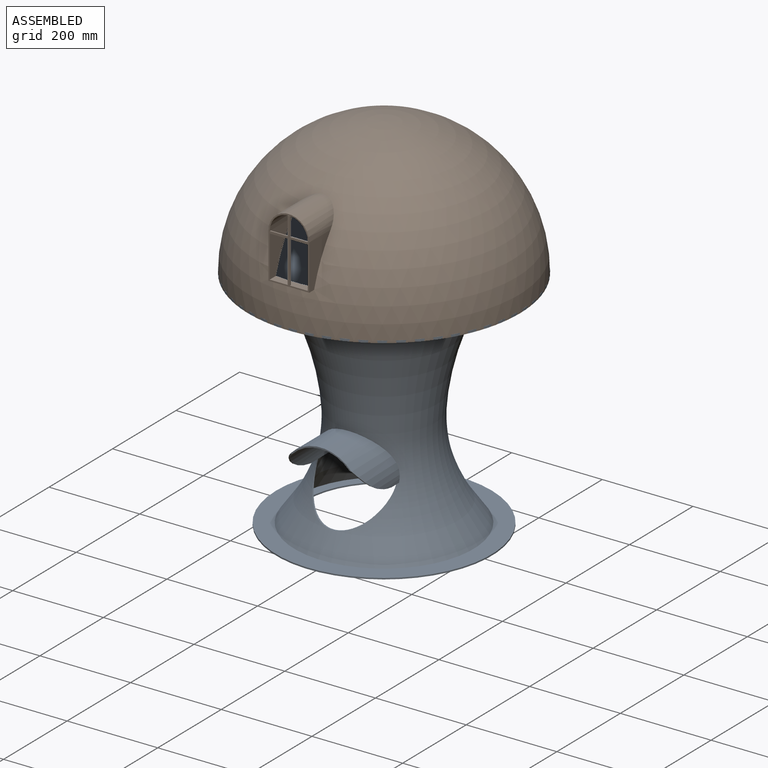
[diagram: assembled view]
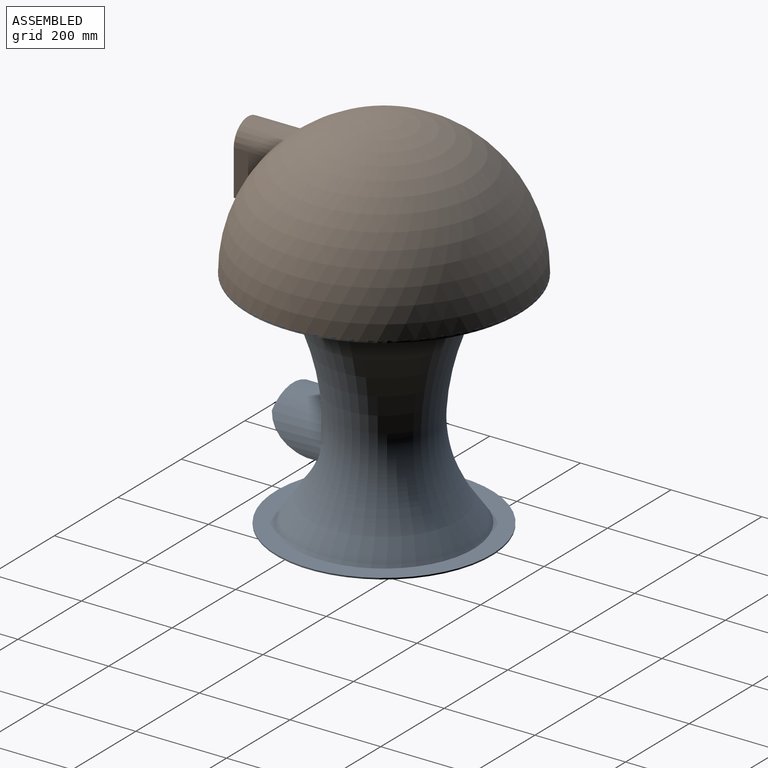
[diagram: assembled view, second angle]
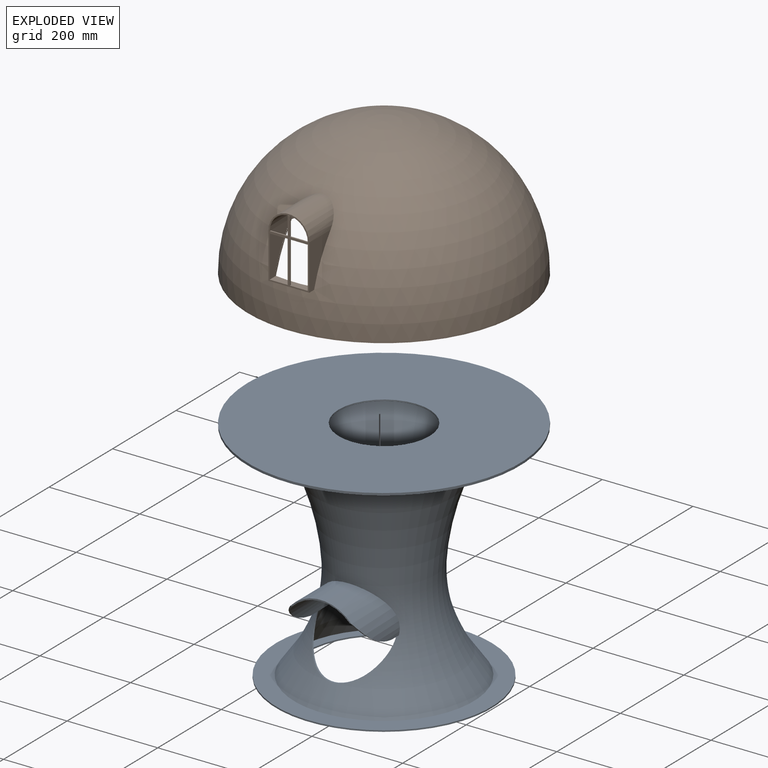
[diagram: exploded view]
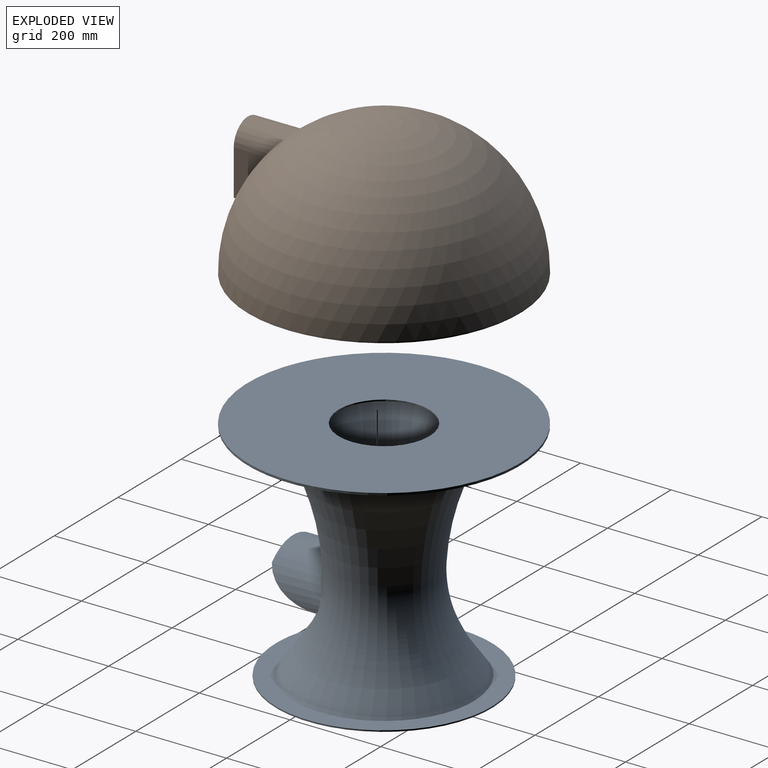
[diagram: exploded view, second angle]
ASSEMBLY  parts=2 mates=2
PART A: 31 faces, bbox 600x600x505 mm
  f0: plane 24.21x3mm, normal (0,0,-1), area 67.8mm2, adj f1,f3,f5,f25
  f1: cylinder r=90.75mm len=181.5mm, axis (0,1,0), area 26230.4mm2, adj f0,f2,f4,f5,f25,f26,f27,f28
  f2: plane 22.93x3mm, normal (0,0,-1), area 64.1mm2, adj f1,f3,f5,f29
  f3: cylinder r=87.75mm len=175.5mm, axis (0,1,0), area 24776.4mm2, adj f0,f2,f4,f5,f25,f26,f27,f28
  f4: plane 135.37x30.3mm, normal (0,-1,0), area 442.6mm2, adj f1,f3,f26,f30
  f5: revolved ~470.9x395.24mm, area 417033.4mm2, adj f0,f1,f2,f3,f7,f8,f19
  f6: revolved ~472.33x387.61mm, area 408002mm2, adj f12,f13,f19,f21,f22,f23,f24
  f7: torus R=228.95mm, axis (0,0,-1), area 68937.7mm2, adj f5,f18
  f8: plane 475.24x475.24mm, normal (0,0,1), area 54693.8mm2, adj f5,f9
  f9: cylinder r=237.62mm len=475.24mm, axis (0,0,-1), area 4479mm2, adj f8,f10
  f10: plane 475.24x475.24mm, normal (0,0,-1), area 83979.8mm2, adj f9,f11
  f11: cylinder r=172.43mm len=344.86mm, axis (0,0,-1), area 3250.2mm2, adj f10,f12
  f12: plane 387.61x387.61mm, normal (0,0,1), area 24594.4mm2, adj f6,f11
  f13: torus R=228.95mm, axis (0,0,-1), area 58051.3mm2, adj f6,f14
  f14: plane 437.41x437.41mm, normal (0,0,-1), area 118852.4mm2, adj f13,f15
  f15: cylinder r=100mm len=200mm, axis (0,0,-1), area 1885mm2, adj f14,f16
  f16: plane 600x600mm, normal (0,0,1), area 251327.4mm2, adj f15,f17
  f17: cylinder r=300mm len=600mm, axis (0,0,-1), area 9424.8mm2, adj f16,f18
  f18: plane 600x600mm, normal (0,0,-1), area 118064.2mm2, adj f7,f17
  f19: cylinder r=87.5mm len=175mm, axis (0,1,0), area 2069.3mm2, adj f5,f6
  f20: plane 181.5x90.75mm, normal (0,1,0), area 841.1mm2, adj f21,f22,f23,f24
  f21: cylinder r=87.75mm len=175.5mm, axis (0,1,0), area 25499.6mm2, adj f6,f20,f22,f24
  f22: plane 83.29x3mm, normal (0,0,-1), area 245.1mm2, adj f6,f20,f21,f23
  f23: cylinder r=90.75mm len=181.5mm, axis (0,1,0), area 25881.3mm2, adj f6,f20,f22,f24
  f24: plane 82.04x3mm, normal (0,0,-1), area 241.2mm2, adj f6,f20,f21,f23
  f25: plane 3x0.15mm, normal (0,-0.8,0.59), area 0.5mm2, adj f0,f1,f3,f27
  f26: plane 4.08x0.36mm, normal (0,0,-1), area 1.5mm2, adj f1,f3,f4,f27
  f27: cylinder r=123.4mm len=92.16mm, axis (-1,0,0), area 365.9mm2, adj f1,f3,f25,f26
  f28: cylinder r=123.4mm len=92.16mm, axis (-1,0,0), area 365.9mm2, adj f1,f3,f29,f30
  f29: plane 3x0.15mm, normal (0,-0.8,0.59), area 0.5mm2, adj f1,f2,f3,f28
  f30: plane 4.08x0.36mm, normal (0,0,-1), area 1.5mm2, adj f1,f3,f4,f28
PART B: 42 faces, bbox 615.4x615.4x318.4 mm
  f0: plane 97x67mm, normal (-1,0,0), area 3640.3mm2, adj f1,f36,f37,f38,f39,f40,f41
  f1: plane 145x90mm, normal (0,-1,0), area 2348.5mm2, adj f0,f2,f3,f4,f5,f6,f7,f27
  f2: plane 41.32x3mm, normal (-1,0,0), area 123.9mm2, adj f1,f3,f6,f40
  f3: plane 5x3mm, normal (0,0,1), area 15mm2, adj f1,f2,f4,f40
  f4: plane 41.32x3mm, normal (1,0,0), area 123.9mm2, adj f1,f3,f5,f40
  f5: plane 39.5x3mm, normal (0,0,1), area 118.5mm2, adj f1,f4,f39,f40
  f6: plane 39.5x3mm, normal (0,0,1), area 118.5mm2, adj f1,f2,f39,f40
  f7: plane 90x15.61mm, normal (0,0,-1), area 1192.1mm2, adj f1,f8,f27,f29
  f8: sphere r=300mm, area 550698.9mm2, adj f7,f9,f27,f28,f29
  f9: cylinder r=300mm len=600mm, axis (0,0,1), area 5654.9mm2, adj f8,f10
  f10: plane 600x600mm, normal (0,0,-1), area 27814.4mm2, adj f9,f11
  f11: cylinder r=284.86mm len=569.72mm, axis (0,0,1), area 5369.5mm2, adj f10,f12
  f12: plane 609.42x609.39mm, normal (0,0,1), area 22198.7mm2, adj f11,f13,f14
  f13: revolved ~444.01x99.81mm, area 0mm2, adj f12,f14
  f14: sphere r=297mm, area 536718.6mm2, adj f12,f13,f15,f23,f24,f25,f26
  f15: plane 102.7x56.11mm, normal (1,0,0), area 58.4mm2, adj f14,f16,f23,f25
  f16: revolved ~145x111.65mm, area 1587.3mm2, adj f15,f17,f19,f20,f22,f23,f24,f25
  f17: plane 84.01x3.56mm, normal (0,0,1), area 33.8mm2, adj f16,f18,f19
  f18: plane 84.02x19.63mm, normal (0,0,1), area 264.7mm2, adj f17,f31,f36,f37
  f19: plane 99.4x54.79mm, normal (-1,0,0), area 57.3mm2, adj f16,f17,f20,f37,f38
  f20: cylinder r=42mm len=84mm, axis (0,1,0), area 108.4mm2, adj f16,f19,f21,f22
  f21: sphere r=297mm, area 87.8mm2, adj f20,f22,f31,f38
  f22: plane 95.67x53.47mm, normal (1,0,0), area 52.4mm2, adj f16,f20,f21,f31
  f23: cylinder r=45mm len=90mm, axis (0,1,0), area 117.1mm2, adj f14,f15,f16,f24
  f24: plane 102.69x56.06mm, normal (-1,0,0), area 55mm2, adj f14,f16,f23,f25
  f25: plane 90x3.99mm, normal (0,0,-1), area 35.3mm2, adj f14,f15,f16,f24
  f26: revolved ~12.82x12.82mm, area 128.1mm2, adj f14
  f27: plane 102.54x70.1mm, normal (-1,0,0), area 3751.6mm2, adj f1,f7,f8,f28
  f28: cylinder r=45mm len=106.48mm, axis (0,1,0), area 12984.2mm2, adj f1,f8,f27,f29
  f29: plane 102.54x70.1mm, normal (1,0,0), area 3751.6mm2, adj f1,f7,f8,f28
  f30: plane 92x3mm, normal (1,0,0), area 276mm2, adj f1,f36,f40,f41
  f31: plane 99.01x72.85mm, normal (1,0,0), area 394.9mm2, adj f1,f16,f18,f21,f22,f32,f35,f38
  f32: sphere r=300mm, area 87mm2, adj f31,f35,f38,f39
  f33: plane 92x3mm, normal (-1,0,0), area 276mm2, adj f1,f34,f36,f40
  f34: plane 39.5x3mm, normal (0,0,-1), area 118.5mm2, adj f1,f33,f35,f40
  f35: plane 95.52x69.12mm, normal (1,0,0), area 3580.1mm2, adj f1,f31,f32,f34,f39,f40
  f36: plane 84.01x16.07mm, normal (0,0,1), area 1160.3mm2, adj f0,f1,f18,f30,f33,f40
  f37: plane 97.01x54.82mm, normal (-1,0,0), area 332.6mm2, adj f0,f18,f19,f38
  f38: cylinder r=41.84mm len=83.67mm, axis (0,1,0), area 564.2mm2, adj f0,f19,f21,f31,f32,f37
  f39: cylinder r=42mm len=102.98mm, axis (0,1,0), area 11808.2mm2, adj f0,f1,f5,f6,f32,f35
  f40: plane 138.32x84mm, normal (0,1,0), area 1086.6mm2, adj f0,f2,f3,f4,f5,f6,f30,f33
  f41: plane 39.5x3mm, normal (0,0,-1), area 118.5mm2, adj f0,f1,f30,f40
PLACE A t=(-1618.94,-345.94,58.43)mm
PLACE B t=(-1718.94,-345.94,561.43)mm
MATE planar A.f9 <-> B.f9  axis (0,0,-1) through (-1418.94,-345.94,558.43)mm
MATE parallel A.f9 <-> B.f9  axis (0,0,1) through (-1418.94,-345.94,563.43)mm
